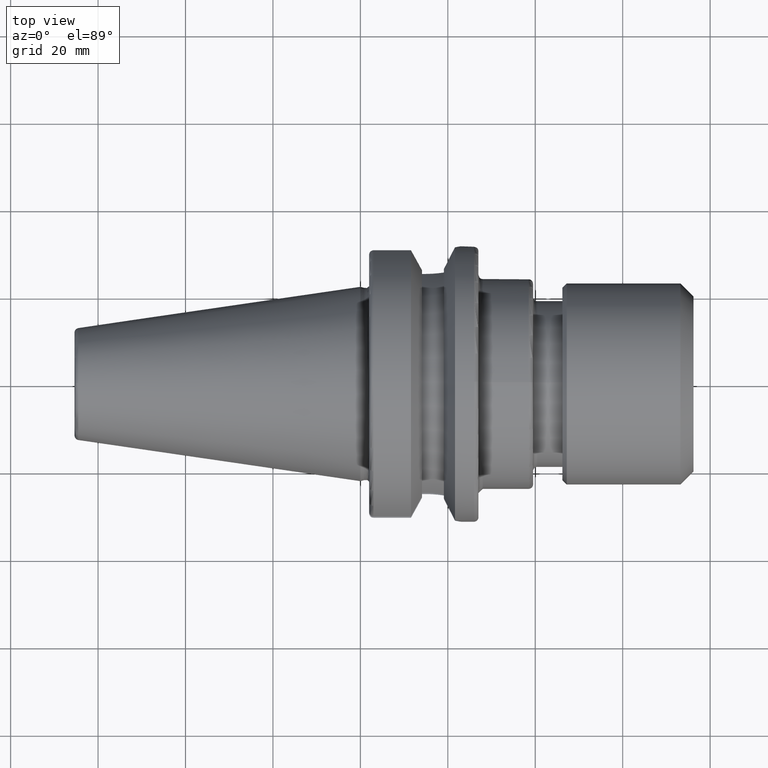
[diagram: clean part render]
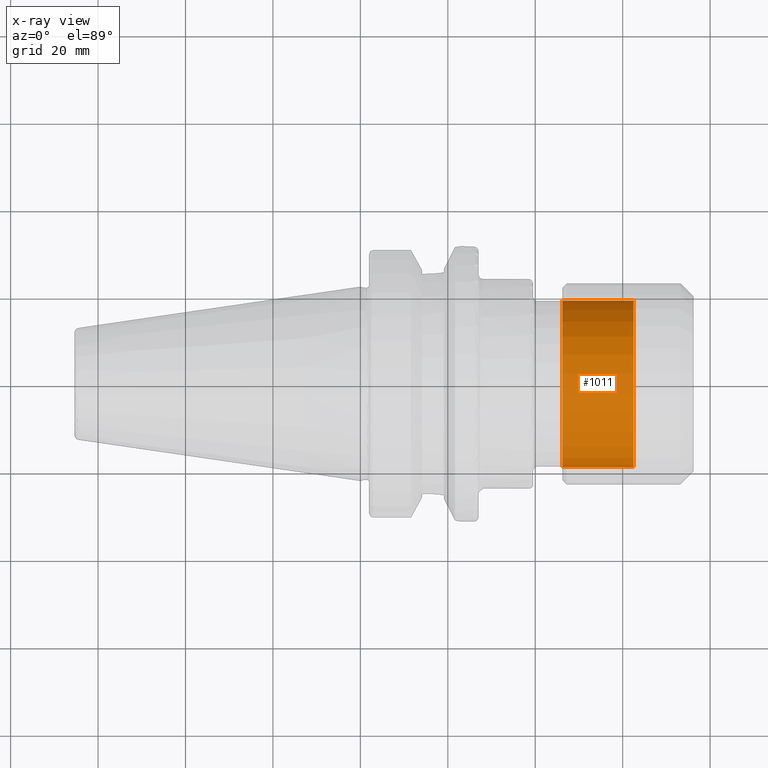
[diagram: x-ray — body ghosted, one internal face saturated and labeled with its STEP entity id]
A machine part, top view, then the same camera in x-ray: the body is ghosted and one INTERNAL B-rep face — a face not visible from any outside direction — is saturated and labeled: STEP entity #1011.
In plain terms, the highlighted cylindrical surface (bore or boss wall) has radius 19.05 mm, axis along (-1, 0, 0).
Its self-contained STEP definition (entity closure, byte-faithful):
#146=LINE('',#1939,#197);
#197=VECTOR('',#1526,19.05);
#217=CYLINDRICAL_SURFACE('',#1214,19.05);
#274=FACE_OUTER_BOUND('',#344,.T.);
#344=EDGE_LOOP('',(#923,#924,#925,#926));
#417=CIRCLE('',#1213,19.05);
#418=CIRCLE('',#1215,19.05);
#510=VERTEX_POINT('',#1935);
#511=VERTEX_POINT('',#1938);
#649=EDGE_CURVE('',#510,#510,#417,.T.);
#650=EDGE_CURVE('',#510,#511,#146,.T.);
#651=EDGE_CURVE('',#511,#511,#418,.T.);
#923=ORIENTED_EDGE('',*,*,#649,.F.);
#924=ORIENTED_EDGE('',*,*,#650,.T.);
#925=ORIENTED_EDGE('',*,*,#651,.F.);
#926=ORIENTED_EDGE('',*,*,#650,.F.);
#1011=ADVANCED_FACE('',(#274),#217,.F.);
#1213=AXIS2_PLACEMENT_3D('',#1936,#1522,#1523);
#1214=AXIS2_PLACEMENT_3D('',#1937,#1524,#1525);
#1215=AXIS2_PLACEMENT_3D('',#1940,#1527,#1528);
#1522=DIRECTION('center_axis',(-1.,0.,0.));
#1523=DIRECTION('ref_axis',(0.,0.,1.));
#1524=DIRECTION('center_axis',(-1.,0.,0.));
#1525=DIRECTION('ref_axis',(0.,1.,0.));
#1526=DIRECTION('',(-1.,0.,0.));
#1527=DIRECTION('center_axis',(1.,0.,0.));
#1528=DIRECTION('ref_axis',(0.,1.,0.));
#1935=CARTESIAN_POINT('',(16.3,-19.05,2.33295215237571E-15));
#1936=CARTESIAN_POINT('Origin',(16.3,0.,0.));
#1937=CARTESIAN_POINT('Origin',(8.15,0.,0.));
#1938=CARTESIAN_POINT('',(0.,-19.05,2.33295215237571E-15));
#1939=CARTESIAN_POINT('',(8.15,-19.05,2.33295215237571E-15));
#1940=CARTESIAN_POINT('Origin',(0.,0.,0.));